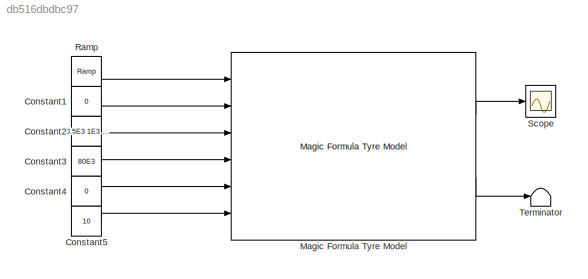
MODEL slx_db516dbdbc97
KIND model
CONFIG AbsTol = auto
CONFIG EnableMultiTasking = off
CONFIG FixedStep = 0.01
CONFIG MaxStep = auto
CONFIG MinStep = auto
CONFIG RelTol = 1e-3
CONFIG SampleTimeConstraint = Unconstrained
CONFIG SolverName = FixedStepDiscrete
CONFIG StartTime = 0.0
CONFIG StopTime = 0.4
BLOCK [Constant] Constant1
  Value = 0
BLOCK [Constant] Constant2
  Value = [0.5E3 1E3 1.5E3]
BLOCK [Constant] Constant3
  Value = 80E3
BLOCK [Constant] Constant4
  Value = 0
BLOCK [Constant] Constant5
  Value = 10
BLOCK [Reference] Magic Formula Tyre Model  REF=MagicFormulaTyreLibrary/Magic Formula Tyre Model
  Ports = [6, 2]
  SourceBlock = MagicFormulaTyreLibrary/Magic Formula Tyre Model
  SourceProductName = Magic Formula Tyre Library
BLOCK [Reference] Ramp  REF=simulink/Sources/Ramp
  Ports = [0, 1]
  SourceBlock = simulink/Sources/Ramp
  SourceProductBaseCode = SL
  SourceType = Ramp
BLOCK [Scope] Scope
  Floating = off
  NumInputPorts = 1
  Ports = [1]
  ScopeSpecificationString = Simulink.scopes.TimeScopeBlockCfg('CurrentConfiguration', extmgr.ConfigurationSet(extmgr.Configuration('Core','General UI',true),extmgr.Configuration('Core','Source UI',true),extmgr.Configuration('Sources','WiredSimulink',true),extmgr.Configuration('Visuals','Time Domain',true,'SerializedDisplays',{struct('MinYLimReal','-2697.03978','MaxYLimReal','2695.42809','YLabelReal','','MinYLimMag','  0.0000...<+1579ch>
BLOCK [Terminator] Terminator
LINE Constant1:1 -> Magic Formula Tyre Model:2
LINE Constant2:1 -> Magic Formula Tyre Model:3
LINE Constant3:1 -> Magic Formula Tyre Model:4
LINE Constant4:1 -> Magic Formula Tyre Model:5
LINE Constant5:1 -> Magic Formula Tyre Model:6
LINE Magic Formula Tyre Model:1 -> Scope:1
LINE Magic Formula Tyre Model:2 -> Terminator:1
LINE Ramp:1 -> Magic Formula Tyre Model:1
